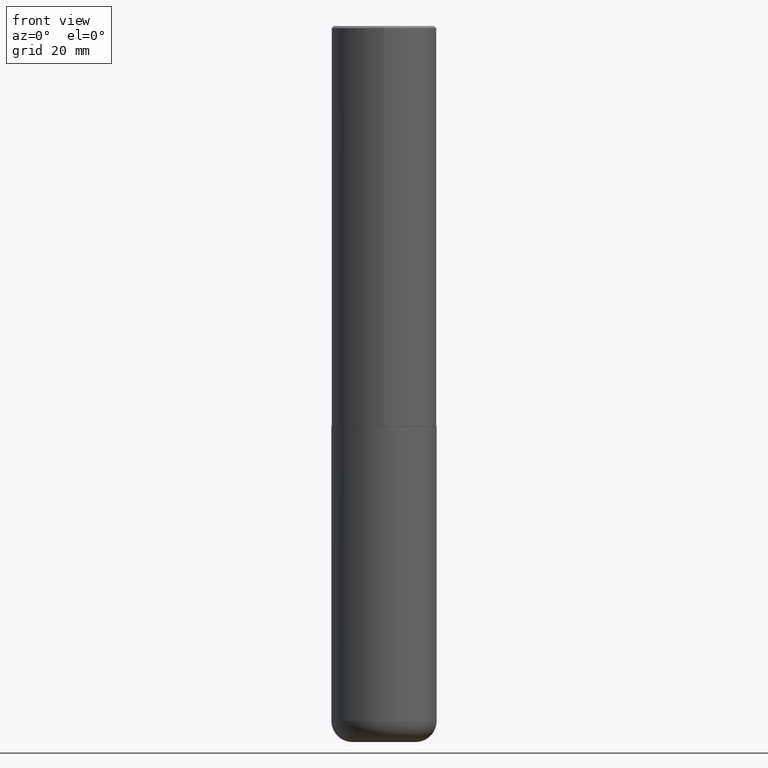
[diagram: clean part render]
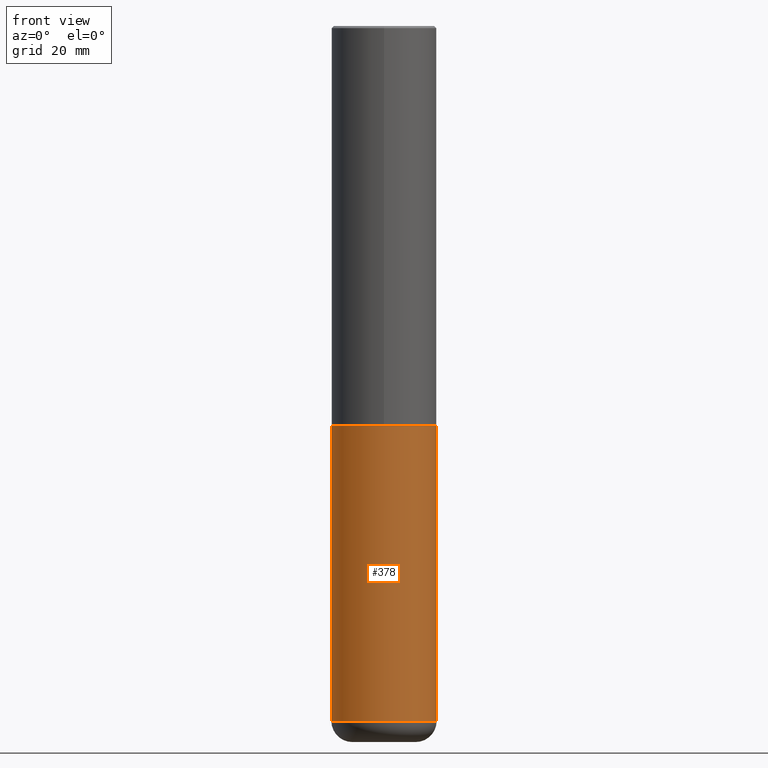
[diagram: same view with one face highlighted and labeled with its STEP entity id]
A machine part, front view. The second image highlights one B-rep face of the part: STEP entity #378.
In plain terms, the highlighted cylindrical surface (partial cylindrical patch) has radius 12.5006 mm, axis along (-0, 0, 1).
Its self-contained STEP definition (entity closure, byte-faithful):
#5 = DIRECTION ( 'NONE',  ( -2.445468806185136597E-29, 3.491481338843145583E-15, 1.000000000000000000 ) ) ;
#15 = LINE ( 'NONE', #120, #253 ) ;
#23 = ORIENTED_EDGE ( 'NONE', *, *, #146, .F. ) ;
#41 = CARTESIAN_POINT ( 'NONE',  ( 1.588576536497864771E-28, -2.268066277712507367E-14, -6.495999999999999552 ) ) ;
#42 = EDGE_CURVE ( 'NONE', #251, #85, #264, .T. ) ;
#49 = VERTEX_POINT ( 'NONE', #383 ) ;
#50 = CARTESIAN_POINT ( 'NONE',  ( 0.4921499999999999764, -1.649515443723054663E-14, -3.740100000000000424 ) ) ;
#53 = CIRCLE ( 'NONE', #296, 0.4921499999999999764 ) ;
#56 = CARTESIAN_POINT ( 'NONE',  ( 0.4921499999999997543, -2.611732785894836787E-14, -6.495999999999999552 ) ) ;
#72 = EDGE_CURVE ( 'NONE', #149, #49, #15, .T. ) ;
#79 = ORIENTED_EDGE ( 'NONE', *, *, #393, .T. ) ;
#84 = DIRECTION ( 'NONE',  ( -2.445468806185136877E-29, 3.491481338843145188E-15, 1.000000000000000000 ) ) ;
#85 = VERTEX_POINT ( 'NONE', #50 ) ;
#89 = VECTOR ( 'NONE', #90, 39.37007874015748143 ) ;
#90 = DIRECTION ( 'NONE',  ( -2.445468806185136877E-29, 3.491481338843145188E-15, 1.000000000000000000 ) ) ;
#103 = CARTESIAN_POINT ( 'NONE',  ( -0.4921499999999997543, -1.918372670308173998E-14, -6.495999999999999552 ) ) ;
#112 = ORIENTED_EDGE ( 'NONE', *, *, #42, .T. ) ;
#117 = CIRCLE ( 'NONE', #176, 0.4921499999999999764 ) ;
#120 = CARTESIAN_POINT ( 'NONE',  ( -0.4921499999999999764, 3.496936074043332897E-15, -2.420853904668951509E-29 ) ) ;
#146 = EDGE_CURVE ( 'NONE', #49, #85, #117, .T. ) ;
#149 = VERTEX_POINT ( 'NONE', #103 ) ;
#167 = DIRECTION ( 'NONE',  ( 1.000000000000000000, -6.982962677686265922E-15, 0.000000000000000000 ) ) ;
#171 = DIRECTION ( 'NONE',  ( 1.000000000000000000, -6.982962677686265922E-15, 0.000000000000000000 ) ) ;
#175 = CYLINDRICAL_SURFACE ( 'NONE', #370, 0.4921499999999999764 ) ;
#176 = AXIS2_PLACEMENT_3D ( 'NONE', #315, #356, #167 ) ;
#239 = CARTESIAN_POINT ( 'NONE',  ( 0.000000000000000000, 0.000000000000000000, 0.000000000000000000 ) ) ;
#251 = VERTEX_POINT ( 'NONE', #56 ) ;
#253 = VECTOR ( 'NONE', #84, 39.37007874015748143 ) ;
#264 = LINE ( 'NONE', #377, #89 ) ;
#272 = DIRECTION ( 'NONE',  ( 1.000000000000000000, -6.982962677686265922E-15, 4.876176775795935793E-29 ) ) ;
#275 = EDGE_LOOP ( 'NONE', ( #410, #79, #112, #23 ) ) ;
#278 = DIRECTION ( 'NONE',  ( -2.445468806185136597E-29, 3.491481338843145583E-15, 1.000000000000000000 ) ) ;
#296 = AXIS2_PLACEMENT_3D ( 'NONE', #41, #278, #171 ) ;
#303 = FACE_OUTER_BOUND ( 'NONE', #275, .T. ) ;
#315 = CARTESIAN_POINT ( 'NONE',  ( 9.146297882013029477E-29, -1.305848935540725085E-14, -3.740100000000000424 ) ) ;
#356 = DIRECTION ( 'NONE',  ( -2.445468806185136597E-29, 3.491481338843145583E-15, 1.000000000000000000 ) ) ;
#370 = AXIS2_PLACEMENT_3D ( 'NONE', #239, #5, #272 ) ;
#377 = CARTESIAN_POINT ( 'NONE',  ( 0.4921499999999999764, -3.436665081823295777E-15, 2.399810400207969603E-29 ) ) ;
#378 = ADVANCED_FACE ( 'NONE', ( #303 ), #175, .T. ) ;
#383 = CARTESIAN_POINT ( 'NONE',  ( -0.4921499999999999764, -1.437263999222282936E-14, -3.740100000000000424 ) ) ;
#393 = EDGE_CURVE ( 'NONE', #149, #251, #53, .T. ) ;
#410 = ORIENTED_EDGE ( 'NONE', *, *, #72, .F. ) ;